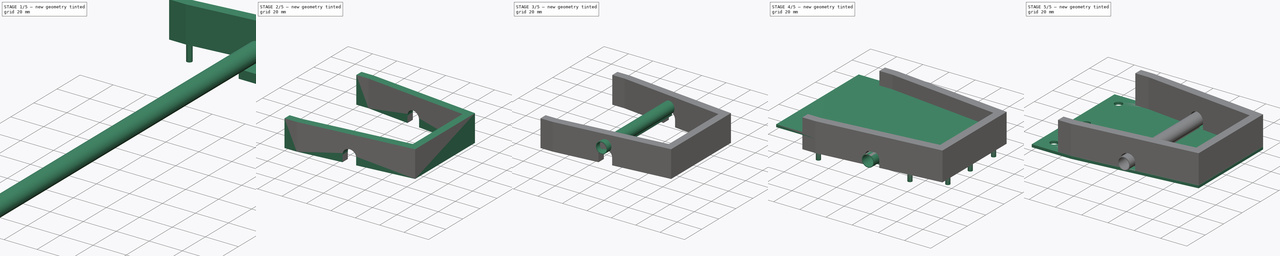
[diagram: build sequence overview — one tinted view per stage of 5, left to right]
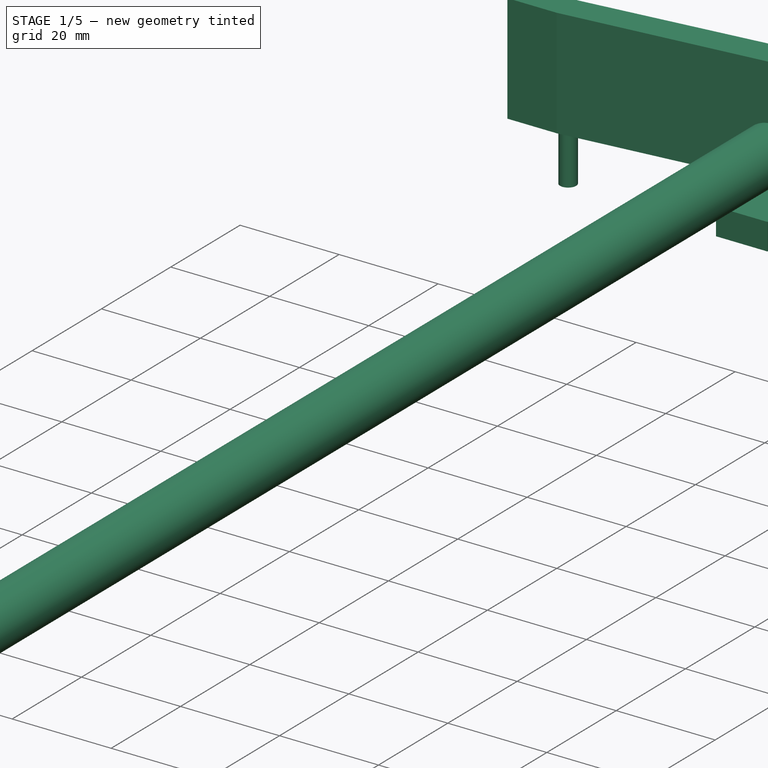
[diagram: stage 1 of 5 — iso view after this stage's code; geometry added in this stage tinted green]
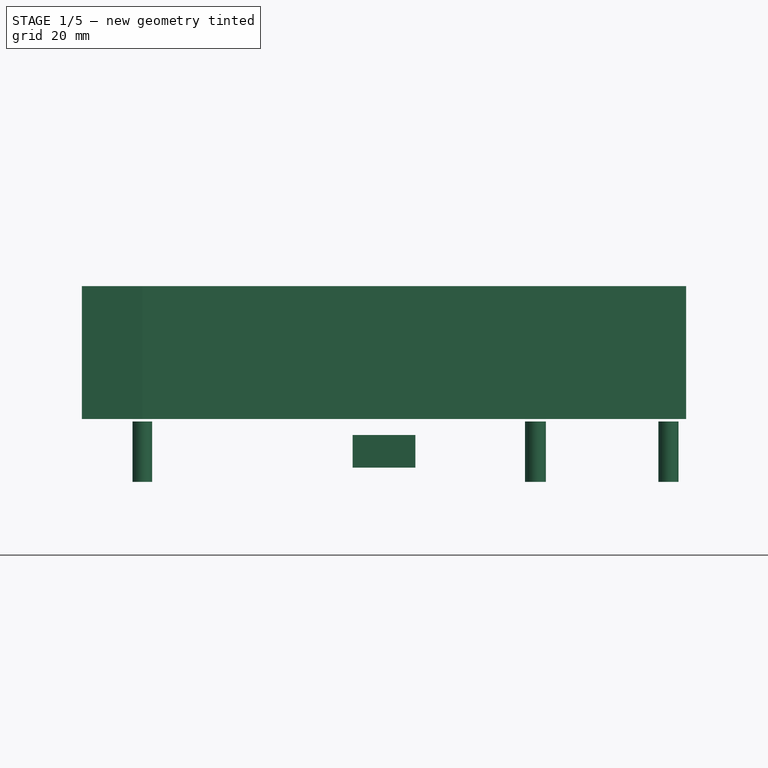
[diagram: stage 1 of 5 — front view after this stage's code; geometry added in this stage tinted green]
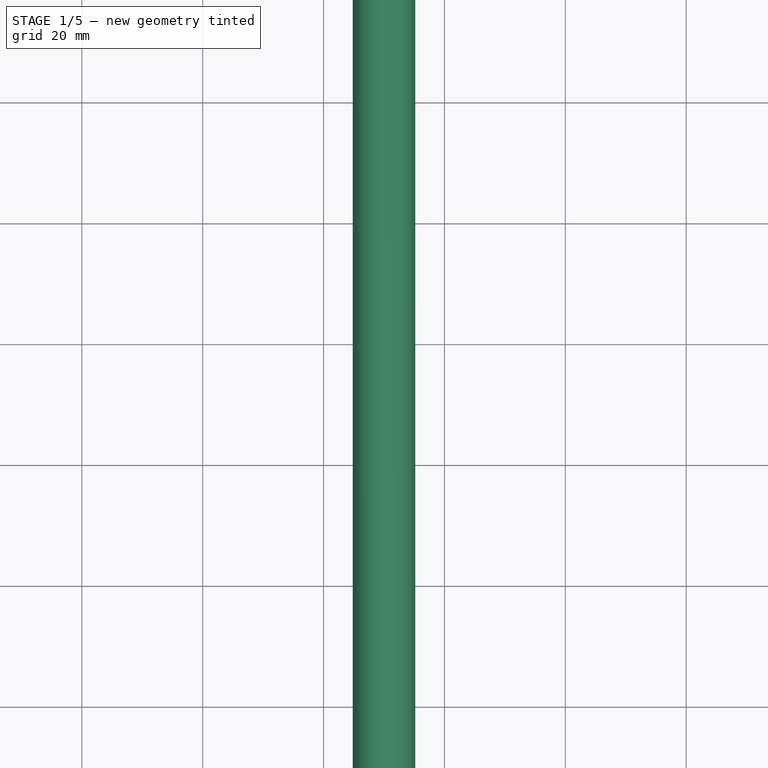
[diagram: stage 1 of 5 — top view after this stage's code; geometry added in this stage tinted green]
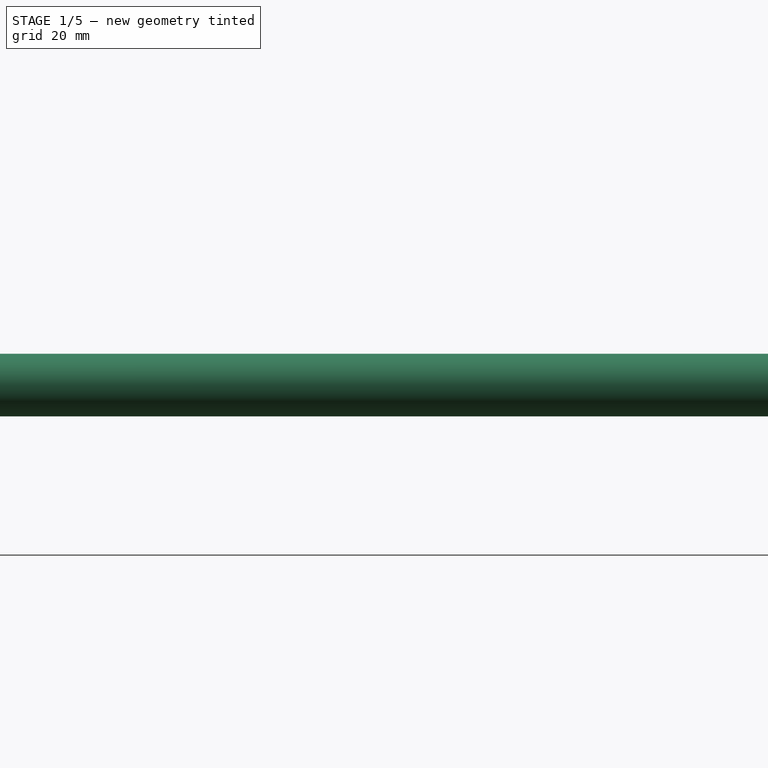
[diagram: stage 1 of 5 — right view after this stage's code; geometry added in this stage tinted green]
FCSTD DOCUMENT  (FreeCAD 0.20R29410 (Git))
Label: Base delantera baja
License: Creative Commons Attribution-ShareAlike
LicenseURL: http://creativecommons.org/licenses/by-sa/4.0/
objects: Sketcher::SketchObject×10, Part::Extrusion×10, Part::Cut×6, Part::MultiFuse×2
note: 28 computed .brp shape members not serialized (recipe doc carries the construction recipe); baked Part::Feature solids carry a one-line shape summary decoded from their .brp

FEATURE [Sketcher::SketchObject] Sketch041
  FullyConstrained = false
  sketch-geometry (12):
    g0: LineSegment StartX=30 StartY=0 StartZ=0 EndX=120 EndY=10 EndZ=0
    g1: LineSegment StartX=120 StartY=10 StartZ=0 EndX=120 EndY=80 EndZ=0
    g2: LineSegment StartX=120 StartY=80 StartZ=0 EndX=30 EndY=90 EndZ=0
    g3: LineSegment StartX=30 StartY=84 StartZ=0 EndX=114 EndY=74 EndZ=0
    g4: LineSegment StartX=114 StartY=74 StartZ=0 EndX=114 EndY=16 EndZ=0
    g5: LineSegment StartX=114 StartY=16 StartZ=0 EndX=30.2268 EndY=6 EndZ=0
    g6: LineSegment StartX=30 StartY=90 StartZ=0 EndX=20 EndY=90 EndZ=0
    g7: LineSegment StartX=20 StartY=90 StartZ=0 EndX=20 EndY=84 EndZ=0
    g8: LineSegment StartX=20 StartY=84 StartZ=0 EndX=30 EndY=84 EndZ=0
    g9: LineSegment StartX=30.2268 StartY=6 StartZ=0 EndX=20 EndY=6 EndZ=0
    g10: LineSegment StartX=20 StartY=6 StartZ=0 EndX=20 EndY=0 EndZ=0
    g11: LineSegment StartX=20 StartY=0 StartZ=0 EndX=30 EndY=0 EndZ=0
  constraints (20):
    c: PointOnObject(g0,g-1)
    c: Coincident(g0,g1)
    c: Vertical(g1)
    c: Coincident(g1,g2)
    c: Coincident(g3,g4)
    c: Vertical(g4)
    c: Coincident(g4,g5)
    c: Coincident(g2,g6)
    c: Horizontal(g6)
    c: Coincident(g6,g7)
    c: Vertical(g7)
    c: Coincident(g7,g8)
    c: Horizontal(g8)
    c: Coincident(g5,g9)
    c: Horizontal(g9)
    c: Coincident(g9,g10)
    c: PointOnObject(g10,g-1)
    c: Vertical(g10)
    c: Coincident(g10,g11)
    c: Coincident(g11,g0)
FEATURE [Part::Extrusion] Extrude044
  Base = -> Sketch041
  Dir = (0,0,1)
  DirMode = 2
  FaceMakerClass = Part::FaceMakerBullseye
  LengthFwd = 22
  LengthRev = 0
  Placement = pos=(0,0,-2) rot=(0,0,1;0rad)
  Solid = true
  Symmetric = false
FEATURE [Sketcher::SketchObject] Sketch042
  FullyConstrained = false
  Placement = pos=(0,0,0) rot=(1,0,0;1.5708rad)
  sketch-geometry (2):
    g0: LineSegment StartX=70 StartY=-30 StartZ=0 EndX=70 EndY=3.62 EndZ=0
    g1: Circle CenterX=70 CenterY=3.62 CenterZ=0 NormalX=0 NormalY=0 NormalZ=1 AngleXU=0 Radius=5.17746
  constraints (3):
    c: Vertical(g0)
    c: DistanceY(g0,g0) = 33.62
    c: Coincident(g1,g0)
FEATURE [Part::Extrusion] Extrude045
  Base = -> Sketch042
  Dir = (0,-1,2e-16)
  DirMode = 2
  FaceMakerClass = Part::FaceMakerBullseye
  LengthFwd = 800
  LengthRev = 0
  Placement = pos=(0,293,0) rot=(0,0,1;0rad)
  Solid = true
  Symmetric = false
FEATURE [Sketcher::SketchObject] Sketch043
  FullyConstrained = false
  MapMode = 5
  Placement = pos=(0,0,12.1) rot=(0,0,1;0rad)
  sketch-geometry (7):
    g0: Circle CenterX=30 CenterY=86.9634 CenterZ=0 NormalX=0 NormalY=0 NormalZ=1 AngleXU=0 Radius=1.6238
    g1: Circle CenterX=30 CenterY=3.25244 CenterZ=0 NormalX=0 NormalY=0 NormalZ=1 AngleXU=0 Radius=1.6238
    g2: Circle CenterX=95.1633 CenterY=10 CenterZ=0 NormalX=0 NormalY=0 NormalZ=1 AngleXU=0 Radius=1.6238
    g3: Circle CenterX=94.9498 CenterY=80 CenterZ=0 NormalX=0 NormalY=0 NormalZ=1 AngleXU=0 Radius=1.6238
    g4: Circle CenterX=117.101 CenterY=20 CenterZ=0 NormalX=0 NormalY=0 NormalZ=1 AngleXU=0 Radius=1.6238
    g5: Circle CenterX=117.031 CenterY=70 CenterZ=0 NormalX=0 NormalY=0 NormalZ=1 AngleXU=0 Radius=1.6238
    g6: Circle CenterX=117.101 CenterY=44.4436 CenterZ=0 NormalX=0 NormalY=0 NormalZ=1 AngleXU=0 Radius=1.6238
  constraints (6):
    c: Equal(g0,g3)
    c: Equal(g3,g5)
    c: Equal(g5,g6)
    c: Equal(g6,g4)
    c: Equal(g4,g2)
    c: Equal(g2,g1)
FEATURE [Part::Extrusion] Extrude046
  Base = -> Sketch043
  Dir = (0,0,1)
  DirMode = 2
  FaceMakerClass = Part::FaceMakerBullseye
  LengthFwd = 10
  LengthRev = 0
  Placement = pos=(0,0,-24.5) rot=(0,0,1;0rad)
  Solid = true
  Symmetric = false
FEATURE [Sketcher::SketchObject] Sketch044
  FullyConstrained = false
  Placement = pos=(0,0,0) rot=(1,0,0;1.5708rad)
  sketch-geometry (5):
    g0: LineSegment StartX=75.1954 StartY=-10.035 StartZ=0 EndX=75.1954 EndY=-4.64279 EndZ=0
    g1: LineSegment StartX=75.1954 StartY=-4.64279 StartZ=0 EndX=64.8046 EndY=-4.64279 EndZ=0
    g2: LineSegment StartX=64.8046 StartY=-4.64279 StartZ=0 EndX=64.8046 EndY=-10.035 EndZ=0
    g3: LineSegment StartX=64.8046 StartY=-10.035 StartZ=0 EndX=75.1954 EndY=-10.035 EndZ=0
    g4: GeomPoint X=70 Y=-4.64279 Z=0
  constraints (9):
    c: Vertical(g0)
    c: Coincident(g0,g1)
    c: Horizontal(g1)
    c: Coincident(g1,g2)
    c: Vertical(g2)
    c: Coincident(g2,g3)
    c: Coincident(g3,g0)
    c: Horizontal(g3)
    c: Symmetric(g1,g1,g4)
FEATURE [Part::Extrusion] Extrude047
  Base = -> Sketch044
  Dir = (0,-1,-6e-16)
  DirMode = 2
  FaceMakerClass = Part::FaceMakerBullseye
  LengthFwd = 100
  LengthRev = 0
  Placement = pos=(0,96.2,0) rot=(0,0,1;0rad)
  Solid = true
  Symmetric = false
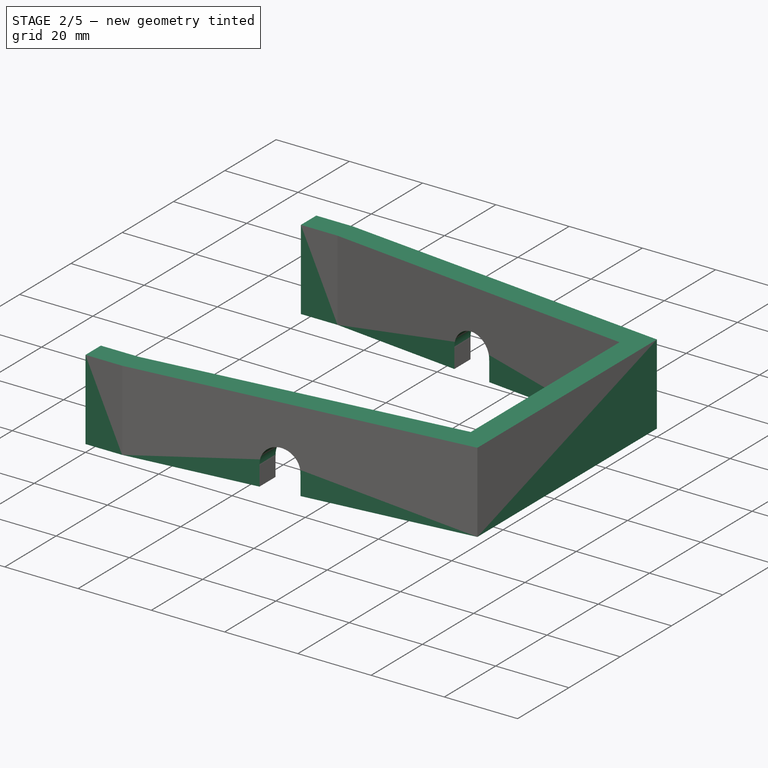
[diagram: stage 2 of 5 — iso view after this stage's code; geometry added in this stage tinted green]
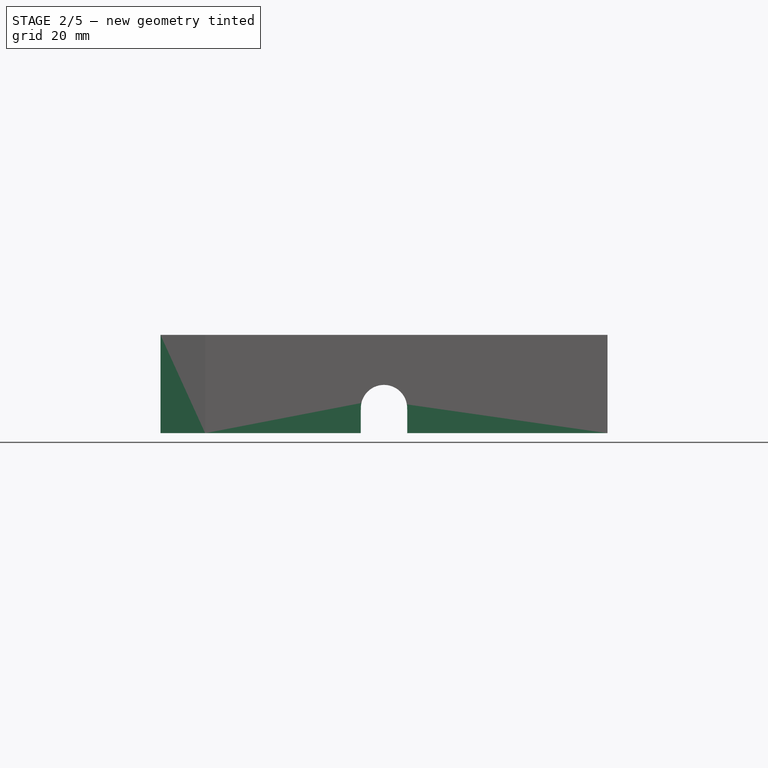
[diagram: stage 2 of 5 — front view after this stage's code; geometry added in this stage tinted green]
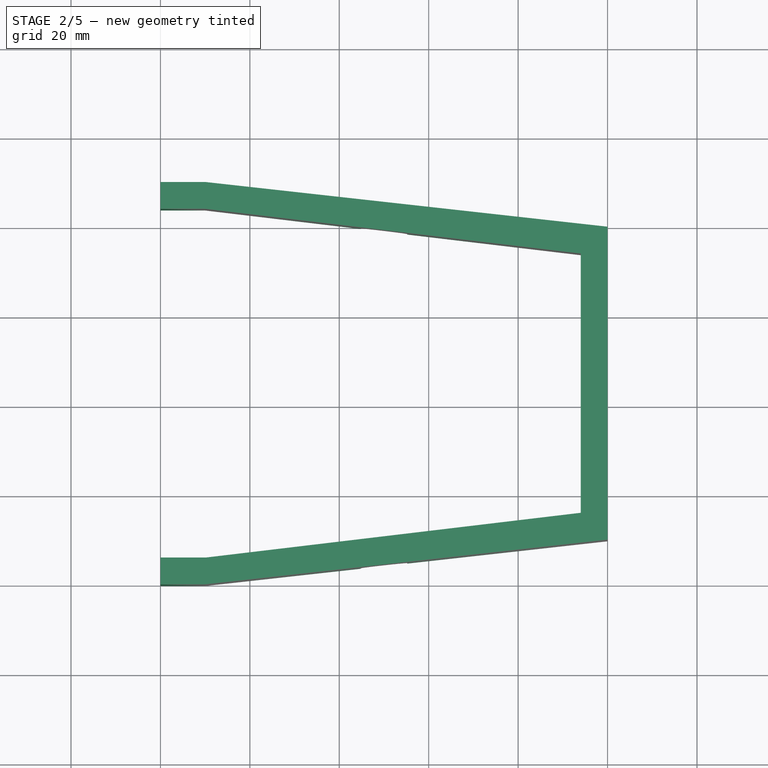
[diagram: stage 2 of 5 — top view after this stage's code; geometry added in this stage tinted green]
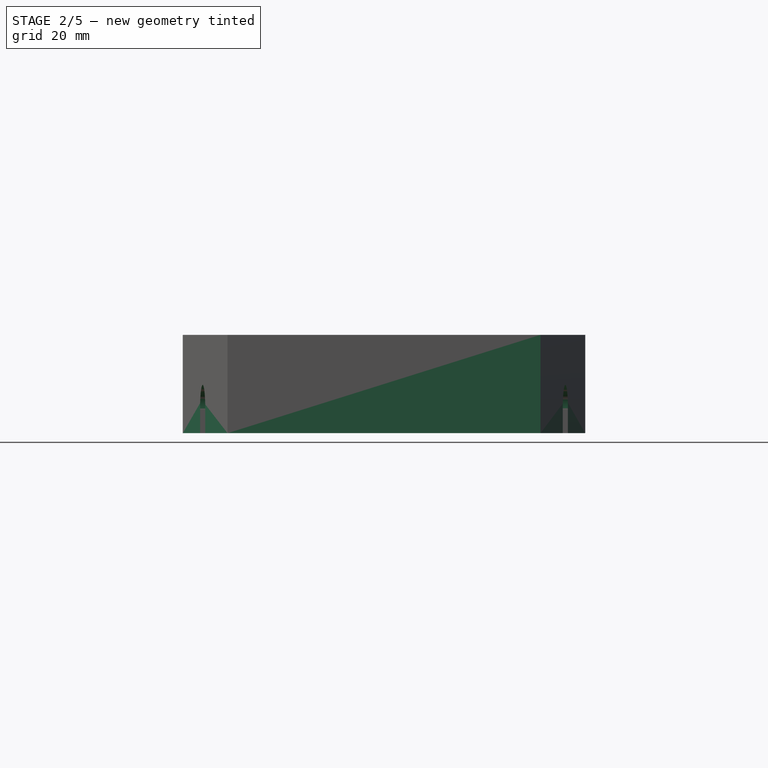
[diagram: stage 2 of 5 — right view after this stage's code; geometry added in this stage tinted green]
FEATURE [Part::Cut] Cut014  label="Tapa delantera baja"
  Base = -> Extrude044
  Placement = pos=(0,0,-7.9) rot=(0,0,1;0rad)
  Refine = true
  Tool = -> Extrude045
FEATURE [Part::Cut] Cut015
  Base = -> Cut014
  Refine = true
  Tool = -> Extrude046
FEATURE [Part::Cut] Cut016  label="Carvasa"
  Base = -> Cut015
  Refine = true
  Tool = -> Extrude047
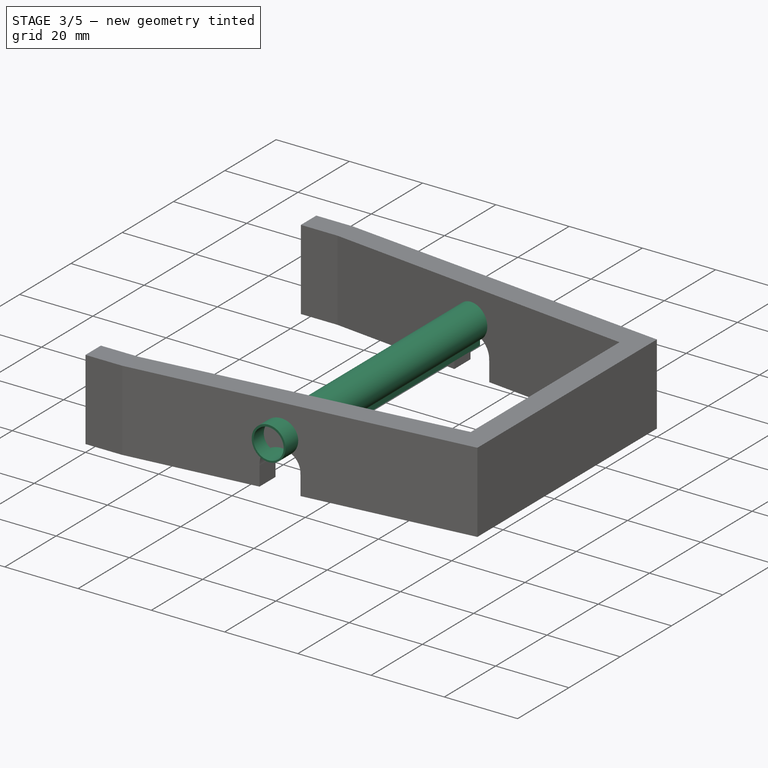
[diagram: stage 3 of 5 — iso view after this stage's code; geometry added in this stage tinted green]
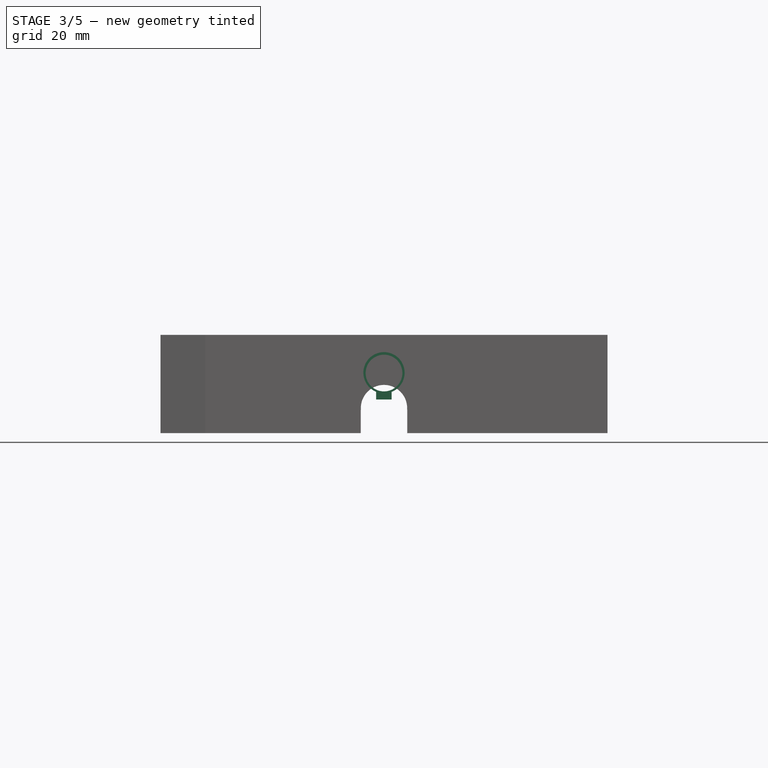
[diagram: stage 3 of 5 — front view after this stage's code; geometry added in this stage tinted green]
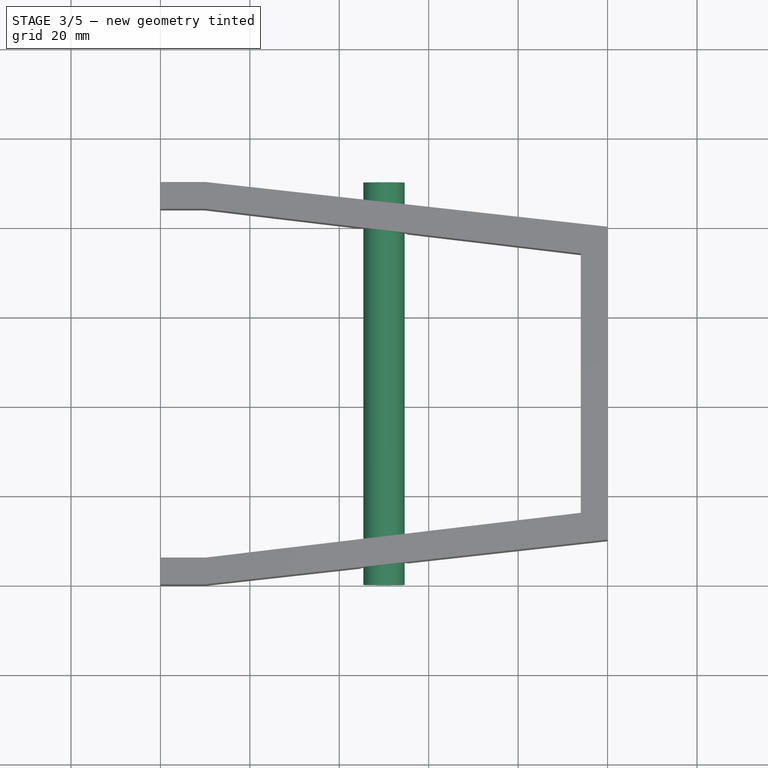
[diagram: stage 3 of 5 — top view after this stage's code; geometry added in this stage tinted green]
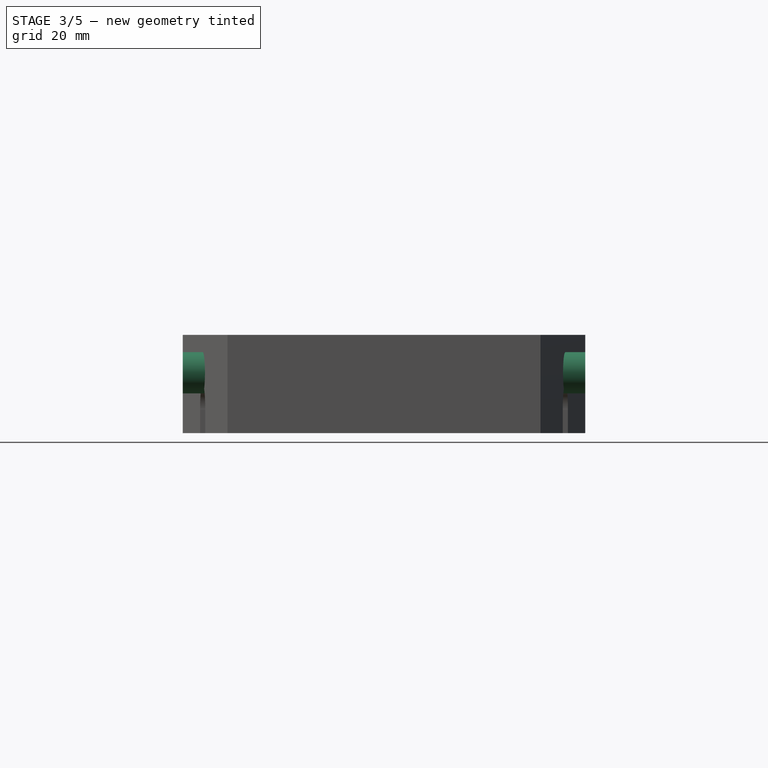
[diagram: stage 3 of 5 — right view after this stage's code; geometry added in this stage tinted green]
FEATURE [Sketcher::SketchObject] Sketch012
  FullyConstrained = false
  Placement = pos=(0,0,0) rot=(1,0,0;1.5708rad)
  sketch-geometry (2):
    g0: LineSegment StartX=70 StartY=-30 StartZ=0 EndX=70 EndY=3.62 EndZ=0
    g1: Circle CenterX=70 CenterY=3.62 CenterZ=0 NormalX=0 NormalY=0 NormalZ=1 AngleXU=0 Radius=4.61234
  constraints (3):
    c: Vertical(g0)
    c: DistanceY(g0,g0) = 33.62
    c: Coincident(g1,g0)
FEATURE [Part::Extrusion] Extrude011
  Base = -> Sketch012
  Dir = (0,-1,2e-16)
  DirMode = 2
  FaceMakerClass = Part::FaceMakerBullseye
  LengthFwd = 90
  LengthRev = 0
  Placement = pos=(0,90,0) rot=(0,0,1;0rad)
  Solid = true
  Symmetric = false
FEATURE [Sketcher::SketchObject] Sketch013
  FullyConstrained = false
  Placement = pos=(0,0,0) rot=(1,0,0;1.5708rad)
  sketch-geometry (2):
    g0: LineSegment StartX=70 StartY=-30.0707 StartZ=0 EndX=70 EndY=3.54929 EndZ=0
    g1: Circle CenterX=70 CenterY=3.54929 CenterZ=0 NormalX=0 NormalY=0 NormalZ=1 AngleXU=0 Radius=4.10386
  constraints (3):
    c: Vertical(g0)
    c: DistanceY(g0,g0) = 33.62
    c: Coincident(g1,g0)
FEATURE [Part::Extrusion] Extrude012
  Base = -> Sketch013
  Dir = (0,-1,2e-16)
  DirMode = 2
  FaceMakerClass = Part::FaceMakerBullseye
  LengthFwd = 120
  LengthRev = 0
  Placement = pos=(0,105,0) rot=(0,0,1;0rad)
  Solid = true
  Symmetric = false
FEATURE [Part::Cut] Cut004  label="Tubo"
  Base = -> Extrude011
  Refine = true
  Tool = -> Extrude012
FEATURE [Sketcher::SketchObject] Sketch031
  FullyConstrained = false
  Placement = pos=(0,0,0) rot=(1,0,0;1.5708rad)
  sketch-geometry (4):
    g0: LineSegment StartX=68.2422 StartY=-0.589183 StartZ=0 EndX=71.6919 EndY=-0.589183 EndZ=0
    g1: LineSegment StartX=71.6919 StartY=-0.589183 StartZ=0 EndX=71.6919 EndY=-2.35709 EndZ=0
    g2: LineSegment StartX=71.6919 StartY=-2.35709 StartZ=0 EndX=68.2422 EndY=-2.35709 EndZ=0
    g3: LineSegment StartX=68.2422 StartY=-2.35709 StartZ=0 EndX=68.2422 EndY=-0.589183 EndZ=0
  constraints (8):
    c: Horizontal(g0)
    c: Coincident(g0,g1)
    c: Vertical(g1)
    c: Coincident(g1,g2)
    c: Horizontal(g2)
    c: Coincident(g2,g3)
    c: Coincident(g3,g0)
    c: Vertical(g3)
FEATURE [Part::Extrusion] Extrude033
  Base = -> Sketch031
  Dir = (0,-1,2e-16)
  DirMode = 2
  FaceMakerClass = Part::FaceMakerBullseye
  LengthFwd = 70
  LengthRev = 0
  Placement = pos=(0,80,0) rot=(0,0,1;0rad)
  Solid = true
  Symmetric = false
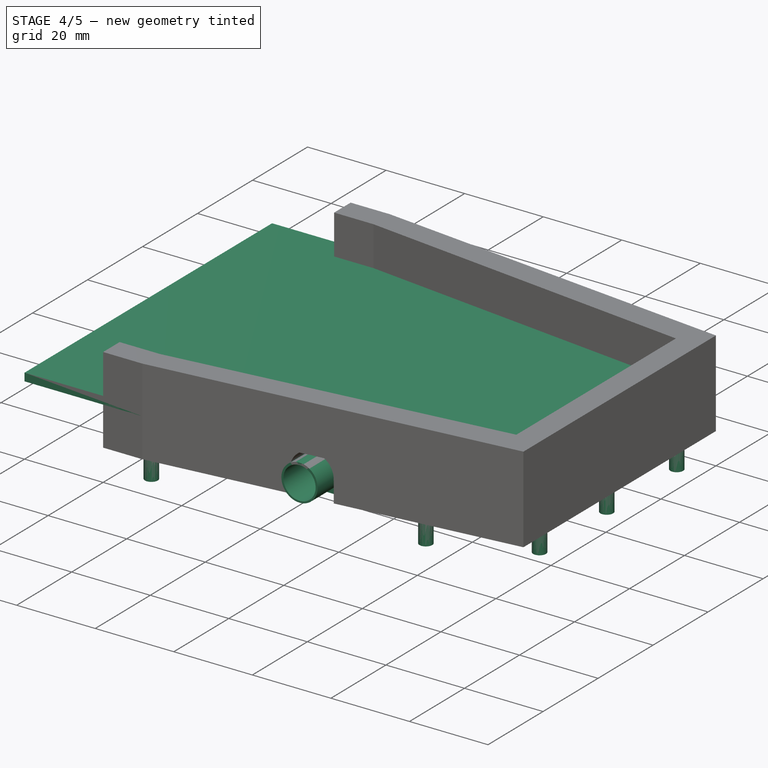
[diagram: stage 4 of 5 — iso view after this stage's code; geometry added in this stage tinted green]
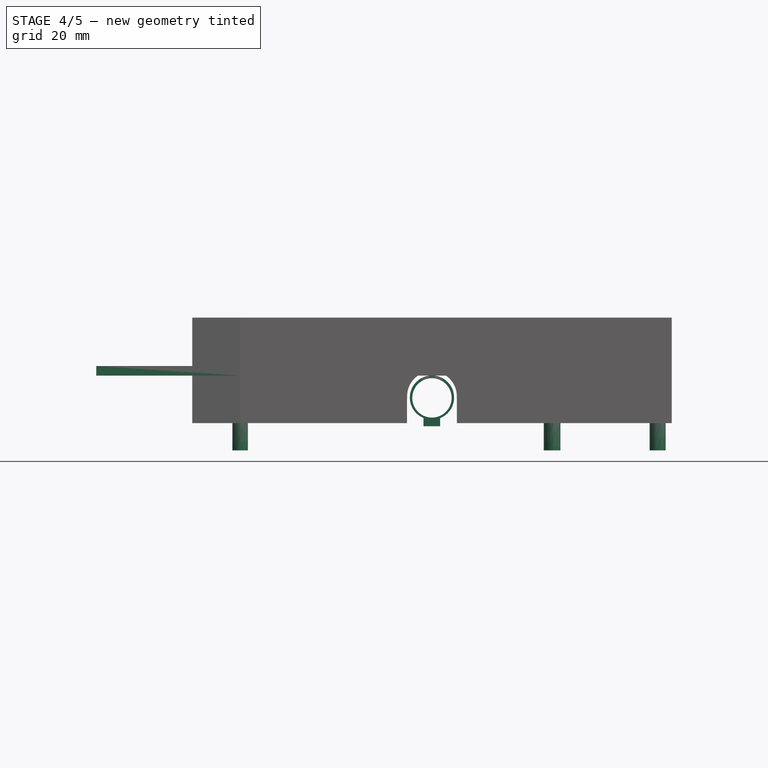
[diagram: stage 4 of 5 — front view after this stage's code; geometry added in this stage tinted green]
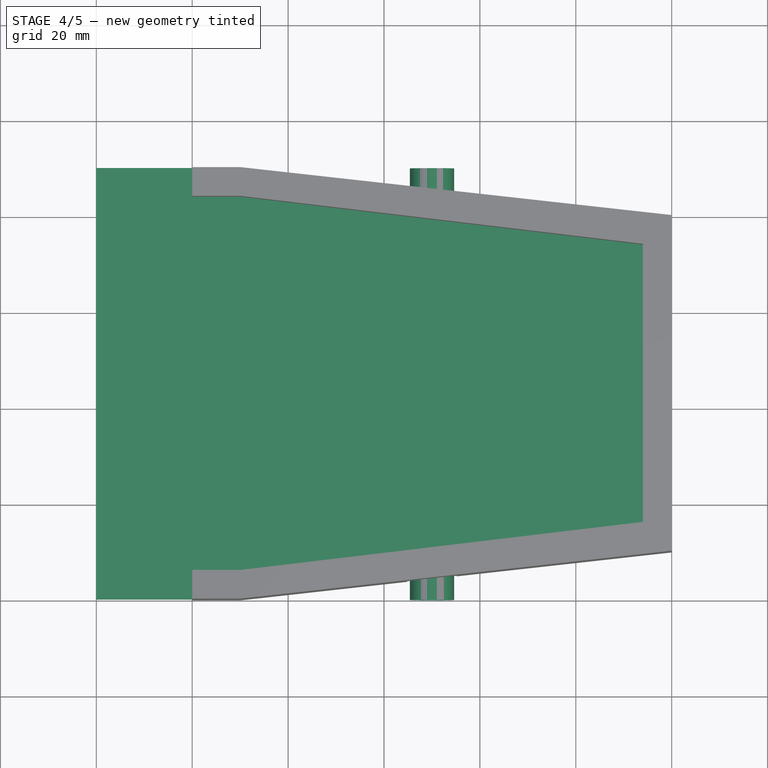
[diagram: stage 4 of 5 — top view after this stage's code; geometry added in this stage tinted green]
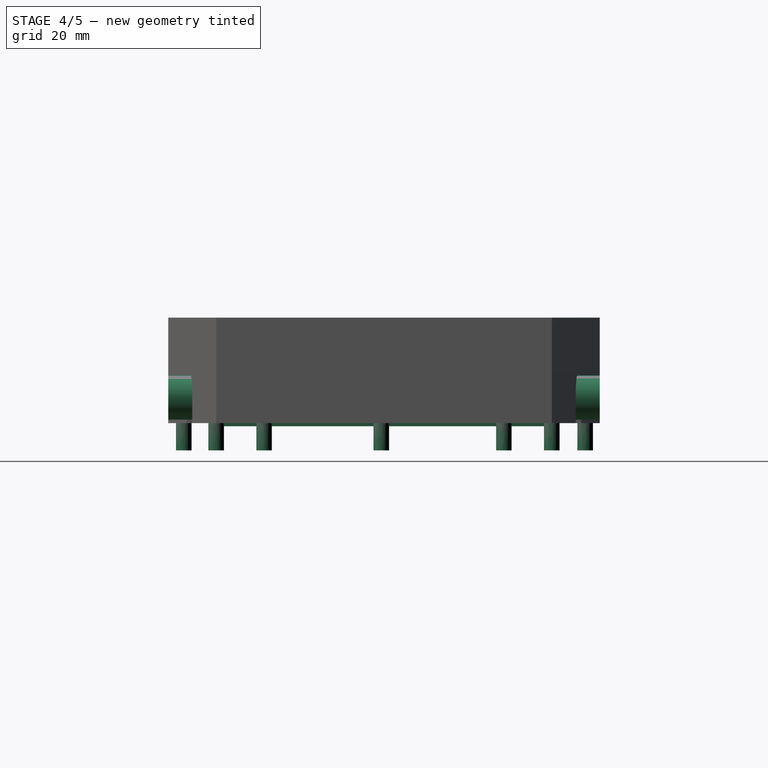
[diagram: stage 4 of 5 — right view after this stage's code; geometry added in this stage tinted green]
FEATURE [Sketcher::SketchObject] Sketch002
  FullyConstrained = false
  sketch-geometry (6):
    g0: LineSegment StartX=0 StartY=0 StartZ=0 EndX=30 EndY=0 EndZ=0
    g1: LineSegment StartX=30 StartY=0 StartZ=0 EndX=120 EndY=10 EndZ=0
    g2: LineSegment StartX=0 StartY=0 StartZ=0 EndX=0 EndY=90 EndZ=0
    g3: LineSegment StartX=0 StartY=90 StartZ=0 EndX=30 EndY=90 EndZ=0
    g4: LineSegment StartX=30 StartY=90 StartZ=0 EndX=120 EndY=80 EndZ=0
    g5: LineSegment StartX=120 StartY=80 StartZ=0 EndX=120 EndY=10 EndZ=0
  constraints (11):
    c: Coincident(g-1,g0)
    c: PointOnObject(g0,g-1)
    c: Coincident(g0,g1)
    c: Coincident(g0,g2)
    c: PointOnObject(g2,g-2)
    c: Coincident(g2,g3)
    c: Horizontal(g3)
    c: Coincident(g3,g4)
    c: Coincident(g4,g5)
    c: Coincident(g5,g1)
    c: Vertical(g5)
FEATURE [Part::Extrusion] Extrude002  label="Base delantera baja"
  Base = -> Sketch002
  Dir = (0,0,1)
  DirMode = 2
  FaceMakerClass = Part::FaceMakerBullseye
  LengthFwd = 2
  LengthRev = 0
  Solid = true
  Symmetric = false
FEATURE [Sketcher::SketchObject] Sketch
  FullyConstrained = false
  MapMode = 5
  Placement = pos=(0,0,12.1) rot=(0,0,1;0rad)
  Support = -> [Cut014]
  sketch-geometry (7):
    g0: Circle CenterX=30 CenterY=86.9634 CenterZ=0 NormalX=0 NormalY=0 NormalZ=1 AngleXU=0 Radius=1.6238
    g1: Circle CenterX=30 CenterY=3.25244 CenterZ=0 NormalX=0 NormalY=0 NormalZ=1 AngleXU=0 Radius=1.6238
    g2: Circle CenterX=95.1633 CenterY=10 CenterZ=0 NormalX=0 NormalY=0 NormalZ=1 AngleXU=0 Radius=1.6238
    g3: Circle CenterX=94.9498 CenterY=80 CenterZ=0 NormalX=0 NormalY=0 NormalZ=1 AngleXU=0 Radius=1.6238
    g4: Circle CenterX=117.101 CenterY=20 CenterZ=0 NormalX=0 NormalY=0 NormalZ=1 AngleXU=0 Radius=1.6238
    g5: Circle CenterX=117.031 CenterY=70 CenterZ=0 NormalX=0 NormalY=0 NormalZ=1 AngleXU=0 Radius=1.6238
    g6: Circle CenterX=117.101 CenterY=44.4436 CenterZ=0 NormalX=0 NormalY=0 NormalZ=1 AngleXU=0 Radius=1.6238
  constraints (6):
    c: Equal(g0,g3)
    c: Equal(g3,g5)
    c: Equal(g5,g6)
    c: Equal(g6,g4)
    c: Equal(g4,g2)
    c: Equal(g2,g1)
FEATURE [Part::Extrusion] Extrude
  Base = -> Sketch
  Dir = (0,0,1)
  DirMode = 2
  FaceMakerClass = Part::FaceMakerBullseye
  LengthFwd = 10
  LengthRev = 0
  Placement = pos=(0,0,-27.7) rot=(0,0,1;0rad)
  Solid = true
  Symmetric = false
FEATURE [Part::MultiFuse] Fusion015
  Placement = pos=(0,0,-8.2) rot=(0,0,1;0rad)
  Refine = true
  Shapes = -> [Extrude033,Cut004]
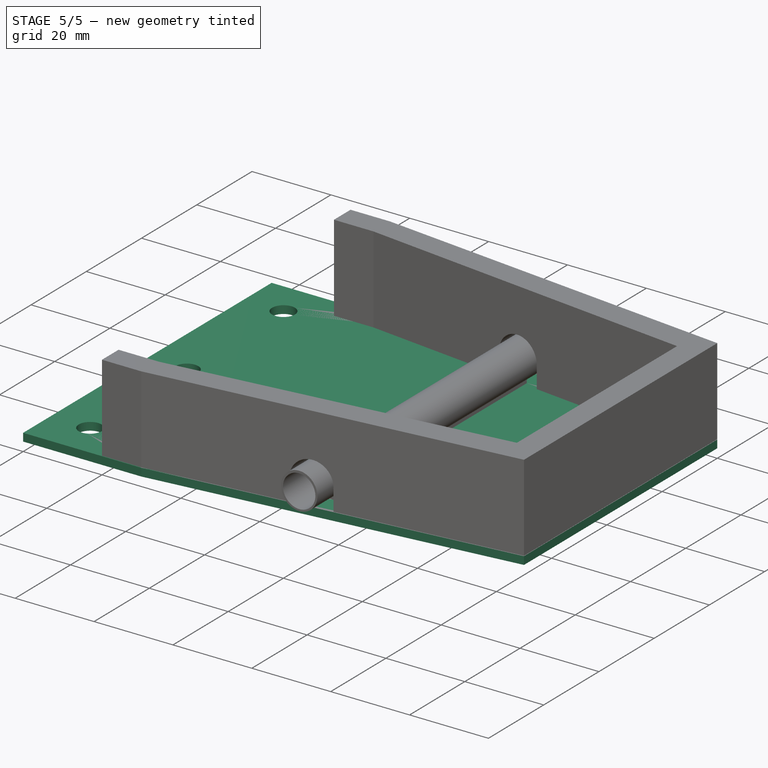
[diagram: stage 5 of 5 — iso view after this stage's code; geometry added in this stage tinted green]
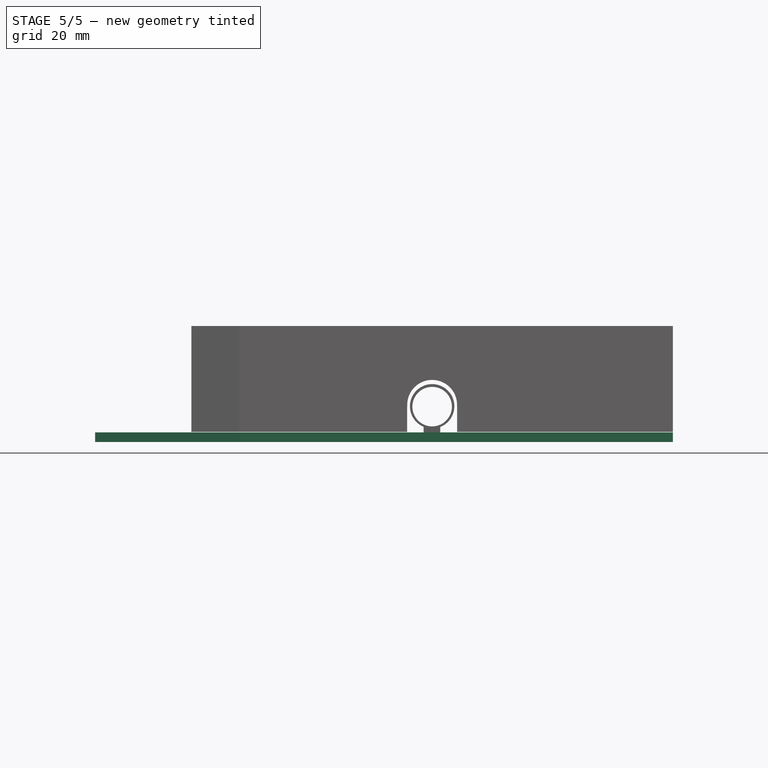
[diagram: stage 5 of 5 — front view after this stage's code; geometry added in this stage tinted green]
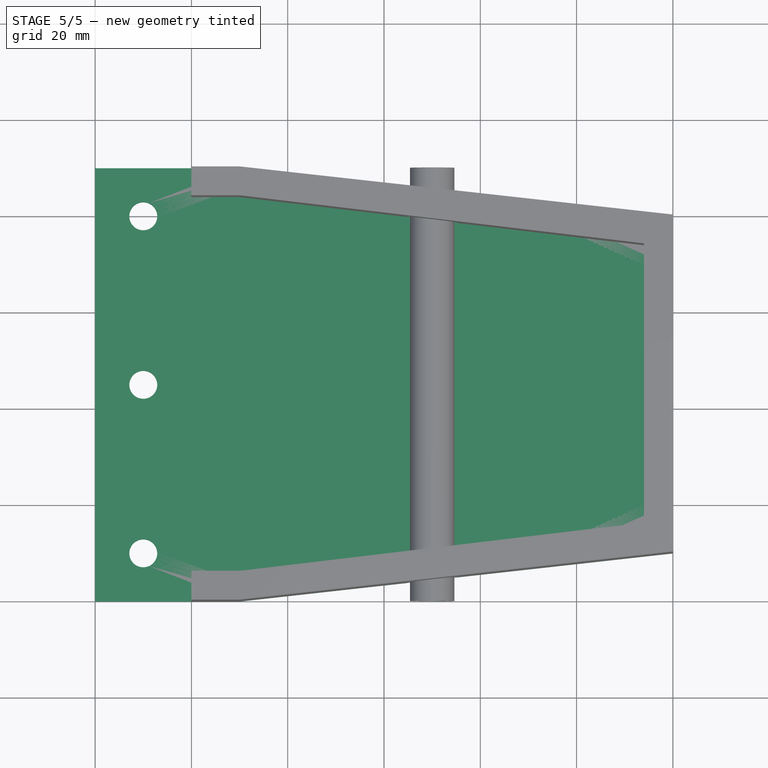
[diagram: stage 5 of 5 — top view after this stage's code; geometry added in this stage tinted green]
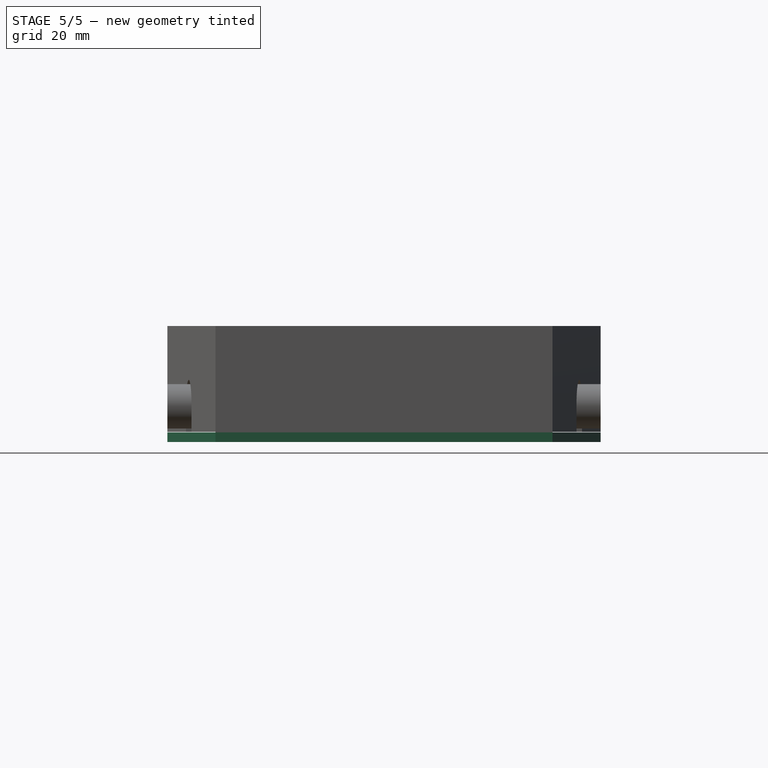
[diagram: stage 5 of 5 — right view after this stage's code; geometry added in this stage tinted green]
FEATURE [Sketcher::SketchObject] Sketch003
  FullyConstrained = false
  MapMode = 5
  Placement = pos=(0,0,2) rot=(0,0,1;0rad)
  Support = -> [Extrude002]
  sketch-geometry (4):
    g0: Circle CenterX=10 CenterY=80.0167 CenterZ=0 NormalX=0 NormalY=0 NormalZ=1 AngleXU=0 Radius=2.9
    g1: Circle CenterX=10 CenterY=45.0083 CenterZ=0 NormalX=0 NormalY=0 NormalZ=1 AngleXU=0 Radius=2.9
    g2: Circle CenterX=10 CenterY=10 CenterZ=0 NormalX=0 NormalY=0 NormalZ=1 AngleXU=0 Radius=2.9
    g3: LineSegment StartX=10 StartY=10 StartZ=0 EndX=10 EndY=80.0167 EndZ=0
  constraints (7):
    c: Coincident(g3,g2)
    c: Coincident(g3,g0)
    c: Vertical(g3)
    c: Symmetric(g3,g3,g1)
    c: Diameter(g0) = 5.8
    c: Equal(g0,g1)
    c: Equal(g1,g2)
FEATURE [Part::Extrusion] Extrude005  label="Tornillos002"
  Base = -> Sketch003
  Dir = (0,0,1)
  DirMode = 2
  FaceMakerClass = Part::FaceMakerBullseye
  LengthFwd = 50
  LengthRev = 0
  Placement = pos=(0,0,-21) rot=(0,0,1;0rad)
  Solid = true
  Symmetric = false
FEATURE [Part::Cut] Cut002  label="Base delantera baja001"
  Base = -> Extrude002
  Placement = pos=(0,0,-12) rot=(0,0,1;0rad)
  Refine = true
  Tool = -> Extrude005
FEATURE [Part::Cut] Cut
  Base = -> Cut002
  Refine = true
  Tool = -> Extrude
FEATURE [Part::MultiFuse] Fusion  label="Base"
  Refine = true
  Shapes = -> [Cut,Fusion015]
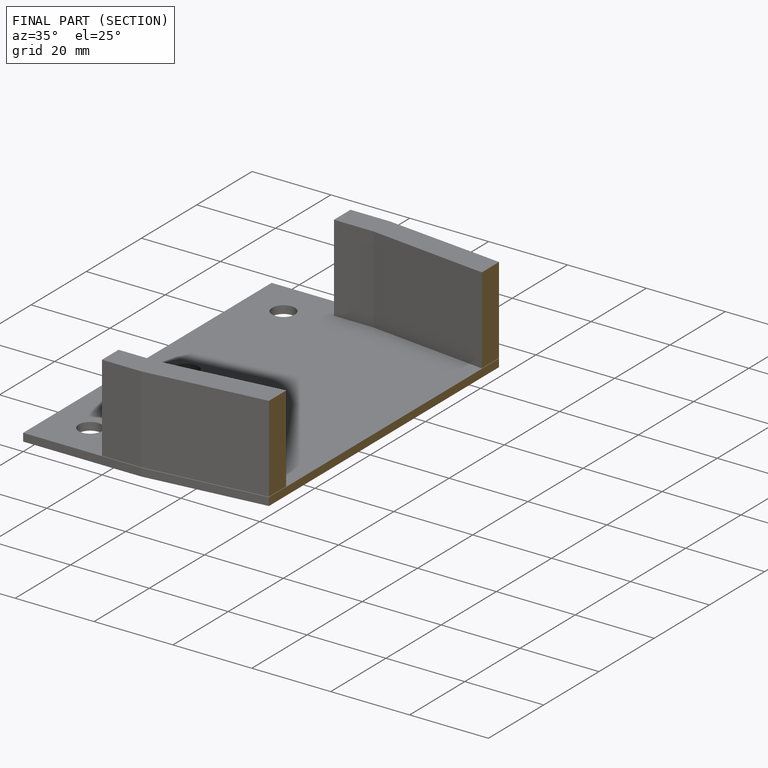
[diagram: finished part — half-section view (interior)]
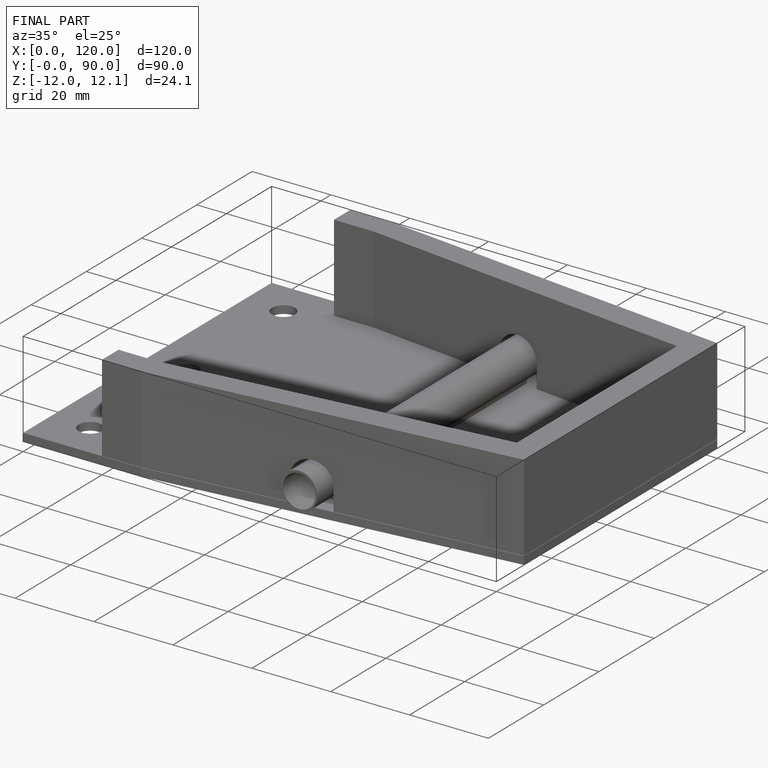
[diagram: finished part — iso view with bounding-box wireframe]
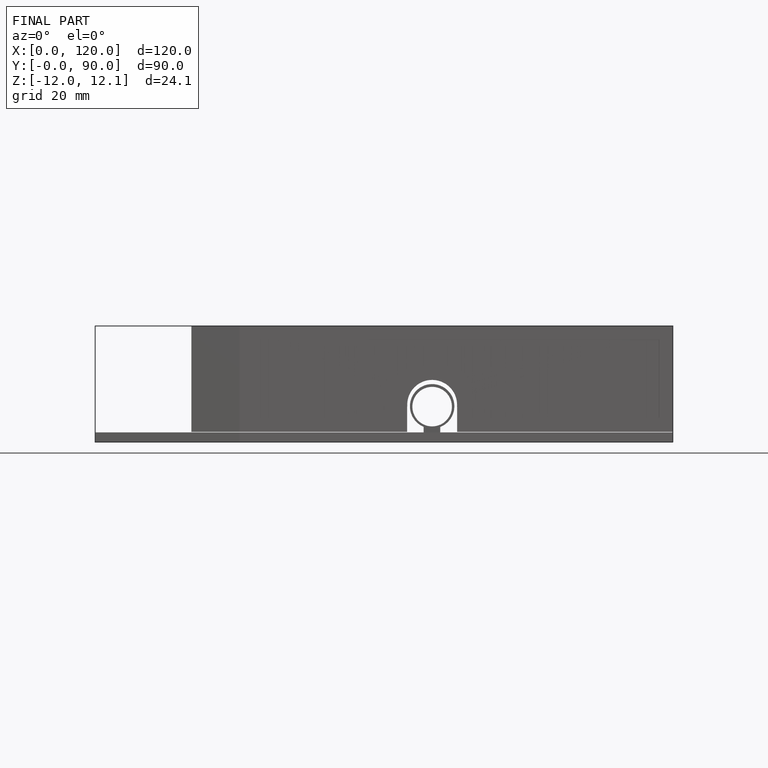
[diagram: finished part — front view with bounding-box wireframe]
